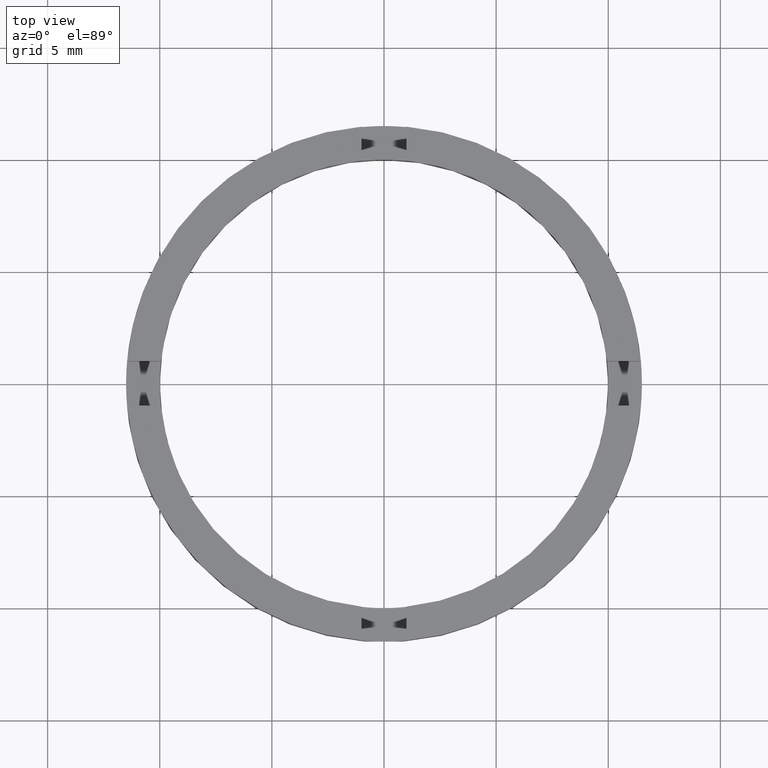
[diagram: clean part render]
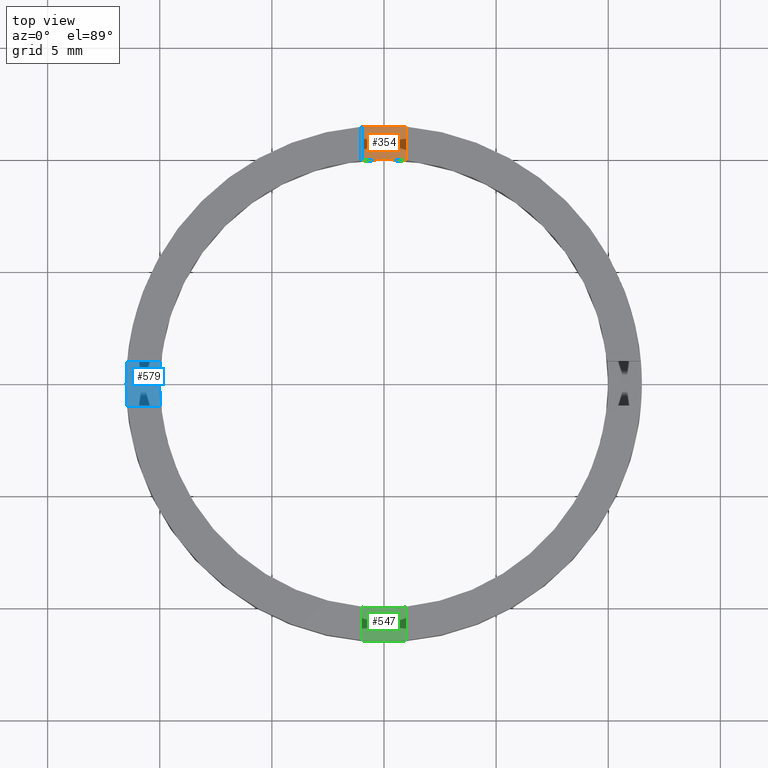
[diagram: same view with three faces highlighted in distinct colors, each labeled with its STEP entity id]
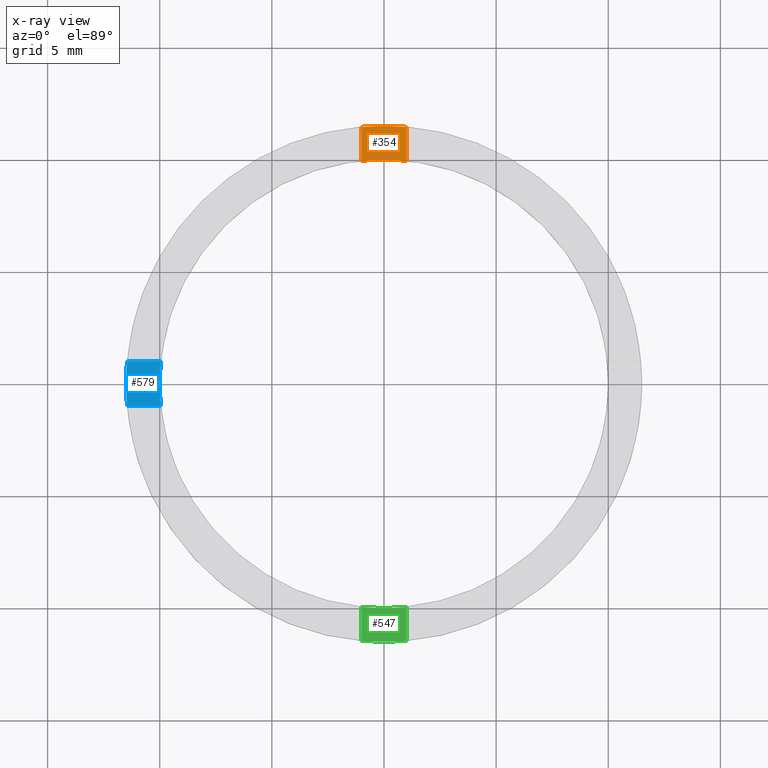
[diagram: x-ray of the same camera — body ghosted, the three highlighted faces saturated]
A machine part, top view with three faces highlighted in distinct colors.
The next image is the same camera in x-ray (body ghosted, the three faces saturated) — at least one of them is partly hidden behind the body in this view.
Their STEP definitions:

[orange] entity #354 — the highlighted planar face has unit normal (0, -0, 1).
#14 = ORIENTED_EDGE ( 'NONE', *, *, #602, .T. ) ;
#31 = DIRECTION ( 'NONE',  ( 0.000000000000000000, 1.000000000000000000, 0.000000000000000000 ) ) ;
#57 = AXIS2_PLACEMENT_3D ( 'NONE', #525, #76, #157 ) ;
#72 = CARTESIAN_POINT ( 'NONE',  ( 0.9999999999999754641, 11.45643923738960090, 1.500000000000000000 ) ) ;
#76 = DIRECTION ( 'NONE',  ( 0.000000000000000000, -0.000000000000000000, 1.000000000000000000 ) ) ;
#114 = EDGE_CURVE ( 'NONE', #749, #476, #718, .T. ) ;
#136 = ORIENTED_EDGE ( 'NONE', *, *, #467, .F. ) ;
#138 = LINE ( 'NONE', #571, #412 ) ;
#157 = DIRECTION ( 'NONE',  ( 1.000000000000000000, 0.000000000000000000, 0.000000000000000000 ) ) ;
#159 = CIRCLE ( 'NONE', #737, 11.50000000000000000 ) ;
#195 = AXIS2_PLACEMENT_3D ( 'NONE', #360, #470, #527 ) ;
#286 = CARTESIAN_POINT ( 'NONE',  ( 0.9999999999999754641, 1.500000000000001332, 1.500000000000000000 ) ) ;
#287 = CARTESIAN_POINT ( 'NONE',  ( -1.000000000000024425, 9.949874371066194101, 1.500000000000000000 ) ) ;
#290 = CARTESIAN_POINT ( 'NONE',  ( 0.000000000000000000, 0.000000000000000000, 1.500000000000000000 ) ) ;
#319 = PLANE ( 'NONE',  #195 ) ;
#354 = ADVANCED_FACE ( 'NONE', ( #479 ), #319, .T. ) ;
#360 = CARTESIAN_POINT ( 'NONE',  ( 0.000000000000000000, 0.000000000000000000, 1.500000000000000000 ) ) ;
#412 = VECTOR ( 'NONE', #452, 1000.000000000000000 ) ;
#413 = VERTEX_POINT ( 'NONE', #287 ) ;
#452 = DIRECTION ( 'NONE',  ( -0.000000000000000000, -1.000000000000000000, -0.000000000000000000 ) ) ;
#467 = EDGE_CURVE ( 'NONE', #749, #413, #727, .T. ) ;
#470 = DIRECTION ( 'NONE',  ( 0.000000000000000000, -0.000000000000000000, 1.000000000000000000 ) ) ;
#472 = EDGE_LOOP ( 'NONE', ( #14, #642, #136, #541 ) ) ;
#476 = VERTEX_POINT ( 'NONE', #72 ) ;
#479 = FACE_OUTER_BOUND ( 'NONE', #472, .T. ) ;
#525 = CARTESIAN_POINT ( 'NONE',  ( 0.000000000000000000, 0.000000000000000000, 1.500000000000000000 ) ) ;
#527 = DIRECTION ( 'NONE',  ( 1.000000000000000000, 0.000000000000000000, -0.000000000000000000 ) ) ;
#538 = CARTESIAN_POINT ( 'NONE',  ( -1.000000000000024425, 11.45643923738959735, 1.500000000000000000 ) ) ;
#541 = ORIENTED_EDGE ( 'NONE', *, *, #114, .T. ) ;
#571 = CARTESIAN_POINT ( 'NONE',  ( -1.000000000000024425, 1.500000000000001332, 1.500000000000000000 ) ) ;
#583 = EDGE_CURVE ( 'NONE', #731, #413, #138, .T. ) ;
#602 = EDGE_CURVE ( 'NONE', #476, #731, #159, .T. ) ;
#605 = DIRECTION ( 'NONE',  ( 1.000000000000000000, 0.000000000000000000, 0.000000000000000000 ) ) ;
#642 = ORIENTED_EDGE ( 'NONE', *, *, #583, .T. ) ;
#705 = VECTOR ( 'NONE', #31, 1000.000000000000000 ) ;
#718 = LINE ( 'NONE', #286, #705 ) ;
#727 = CIRCLE ( 'NONE', #57, 9.999999999999998224 ) ;
#731 = VERTEX_POINT ( 'NONE', #538 ) ;
#737 = AXIS2_PLACEMENT_3D ( 'NONE', #290, #767, #605 ) ;
#749 = VERTEX_POINT ( 'NONE', #771 ) ;
#767 = DIRECTION ( 'NONE',  ( 0.000000000000000000, -0.000000000000000000, 1.000000000000000000 ) ) ;
#771 = CARTESIAN_POINT ( 'NONE',  ( 0.9999999999999754641, 9.949874371066199430, 1.500000000000000000 ) ) ;

[blue] entity #579 — the highlighted planar face has unit normal (0, 0, 1).
#3 = VERTEX_POINT ( 'NONE', #304 ) ;
#20 = AXIS2_PLACEMENT_3D ( 'NONE', #590, #236, #60 ) ;
#40 = DIRECTION ( 'NONE',  ( 0.000000000000000000, 0.000000000000000000, 1.000000000000000000 ) ) ;
#42 = AXIS2_PLACEMENT_3D ( 'NONE', #252, #186, #297 ) ;
#54 = DIRECTION ( 'NONE',  ( 0.000000000000000000, 0.000000000000000000, 1.000000000000000000 ) ) ;
#60 = DIRECTION ( 'NONE',  ( 1.000000000000000000, 0.000000000000000000, -0.000000000000000000 ) ) ;
#67 = CARTESIAN_POINT ( 'NONE',  ( -11.45643923738960090, 0.9999999999999781286, 1.500000000000000000 ) ) ;
#74 = EDGE_CURVE ( 'NONE', #531, #537, #152, .T. ) ;
#78 = EDGE_CURVE ( 'NONE', #761, #536, #161, .T. ) ;
#90 = DIRECTION ( 'NONE',  ( 1.000000000000000000, 0.000000000000000000, 0.000000000000000000 ) ) ;
#106 = ORIENTED_EDGE ( 'NONE', *, *, #78, .T. ) ;
#110 = PLANE ( 'NONE',  #20 ) ;
#112 = VECTOR ( 'NONE', #676, 1000.000000000000000 ) ;
#133 = ORIENTED_EDGE ( 'NONE', *, *, #74, .F. ) ;
#152 = CIRCLE ( 'NONE', #280, 9.999999999999998224 ) ;
#161 = CIRCLE ( 'NONE', #303, 11.50000000000000000 ) ;
#186 = DIRECTION ( 'NONE',  ( 0.000000000000000000, 0.000000000000000000, 1.000000000000000000 ) ) ;
#200 = CIRCLE ( 'NONE', #42, 11.50000000000000000 ) ;
#204 = LINE ( 'NONE', #565, #724 ) ;
#206 = CIRCLE ( 'NONE', #609, 9.999999999999998224 ) ;
#207 = VERTEX_POINT ( 'NONE', #478 ) ;
#223 = CARTESIAN_POINT ( 'NONE',  ( -1.500000000000185185, 0.9999999999999799050, 1.500000000000000000 ) ) ;
#236 = DIRECTION ( 'NONE',  ( 0.000000000000000000, 0.000000000000000000, 1.000000000000000000 ) ) ;
#237 = ORIENTED_EDGE ( 'NONE', *, *, #416, .T. ) ;
#250 = ORIENTED_EDGE ( 'NONE', *, *, #690, .T. ) ;
#252 = CARTESIAN_POINT ( 'NONE',  ( 0.000000000000000000, 0.000000000000000000, 1.500000000000000000 ) ) ;
#256 = CARTESIAN_POINT ( 'NONE',  ( -9.949874371066199430, 0.9999999999999783507, 1.500000000000000000 ) ) ;
#280 = AXIS2_PLACEMENT_3D ( 'NONE', #310, #645, #585 ) ;
#291 = EDGE_CURVE ( 'NONE', #536, #207, #200, .T. ) ;
#297 = DIRECTION ( 'NONE',  ( 1.000000000000000000, 0.000000000000000000, 0.000000000000000000 ) ) ;
#298 = CARTESIAN_POINT ( 'NONE',  ( -9.999999999999998224, 0.000000000000000000, 1.500000000000000000 ) ) ;
#301 = CARTESIAN_POINT ( 'NONE',  ( -11.50000000000000000, 0.000000000000000000, 1.500000000000000000 ) ) ;
#303 = AXIS2_PLACEMENT_3D ( 'NONE', #345, #54, #90 ) ;
#304 = CARTESIAN_POINT ( 'NONE',  ( -9.949874371066195877, -1.000000000000021760, 1.500000000000000000 ) ) ;
#310 = CARTESIAN_POINT ( 'NONE',  ( 0.000000000000000000, 0.000000000000000000, 1.500000000000000000 ) ) ;
#345 = CARTESIAN_POINT ( 'NONE',  ( 0.000000000000000000, 0.000000000000000000, 1.500000000000000000 ) ) ;
#358 = DIRECTION ( 'NONE',  ( 1.000000000000000000, 1.734723475976807341E-16, -0.000000000000000000 ) ) ;
#394 = ORIENTED_EDGE ( 'NONE', *, *, #420, .F. ) ;
#416 = EDGE_CURVE ( 'NONE', #207, #3, #204, .T. ) ;
#420 = EDGE_CURVE ( 'NONE', #537, #3, #206, .T. ) ;
#468 = DIRECTION ( 'NONE',  ( 1.000000000000000000, 0.000000000000000000, 0.000000000000000000 ) ) ;
#478 = CARTESIAN_POINT ( 'NONE',  ( -11.45643923738959735, -1.000000000000021982, 1.500000000000000000 ) ) ;
#531 = VERTEX_POINT ( 'NONE', #256 ) ;
#536 = VERTEX_POINT ( 'NONE', #301 ) ;
#537 = VERTEX_POINT ( 'NONE', #298 ) ;
#565 = CARTESIAN_POINT ( 'NONE',  ( -1.500000000000185185, -1.000000000000020206, 1.500000000000000000 ) ) ;
#579 = ADVANCED_FACE ( 'NONE', ( #657 ), #110, .T. ) ;
#585 = DIRECTION ( 'NONE',  ( 1.000000000000000000, 0.000000000000000000, 0.000000000000000000 ) ) ;
#590 = CARTESIAN_POINT ( 'NONE',  ( 0.000000000000000000, 0.000000000000000000, 1.500000000000000000 ) ) ;
#609 = AXIS2_PLACEMENT_3D ( 'NONE', #777, #40, #468 ) ;
#635 = LINE ( 'NONE', #223, #112 ) ;
#645 = DIRECTION ( 'NONE',  ( 0.000000000000000000, 0.000000000000000000, 1.000000000000000000 ) ) ;
#657 = FACE_OUTER_BOUND ( 'NONE', #744, .T. ) ;
#676 = DIRECTION ( 'NONE',  ( -1.000000000000000000, -1.734723475976807341E-16, 0.000000000000000000 ) ) ;
#690 = EDGE_CURVE ( 'NONE', #531, #761, #635, .T. ) ;
#704 = ORIENTED_EDGE ( 'NONE', *, *, #291, .T. ) ;
#724 = VECTOR ( 'NONE', #358, 1000.000000000000000 ) ;
#744 = EDGE_LOOP ( 'NONE', ( #106, #704, #237, #394, #133, #250 ) ) ;
#761 = VERTEX_POINT ( 'NONE', #67 ) ;
#777 = CARTESIAN_POINT ( 'NONE',  ( 0.000000000000000000, 0.000000000000000000, 1.500000000000000000 ) ) ;

[green] entity #547 — the highlighted planar face has unit normal (-0, 0, 1).
#1 = ORIENTED_EDGE ( 'NONE', *, *, #699, .T. ) ;
#21 = DIRECTION ( 'NONE',  ( 1.000000000000000000, 0.000000000000000000, 0.000000000000000000 ) ) ;
#29 = CARTESIAN_POINT ( 'NONE',  ( 0.000000000000000000, 0.000000000000000000, 1.500000000000000000 ) ) ;
#52 = EDGE_CURVE ( 'NONE', #391, #633, #660, .T. ) ;
#65 = DIRECTION ( 'NONE',  ( -0.000000000000000000, 0.000000000000000000, 1.000000000000000000 ) ) ;
#77 = EDGE_CURVE ( 'NONE', #720, #633, #675, .T. ) ;
#96 = EDGE_CURVE ( 'NONE', #391, #228, #670, .T. ) ;
#121 = DIRECTION ( 'NONE',  ( 1.000000000000000000, 0.000000000000000000, 0.000000000000000000 ) ) ;
#123 = ORIENTED_EDGE ( 'NONE', *, *, #96, .T. ) ;
#141 = ORIENTED_EDGE ( 'NONE', *, *, #52, .F. ) ;
#198 = VECTOR ( 'NONE', #589, 1000.000000000000000 ) ;
#217 = FACE_OUTER_BOUND ( 'NONE', #783, .T. ) ;
#228 = VERTEX_POINT ( 'NONE', #330 ) ;
#282 = CARTESIAN_POINT ( 'NONE',  ( 0.9999999999998350209, -1.500000000000181632, 1.500000000000000000 ) ) ;
#330 = CARTESIAN_POINT ( 'NONE',  ( -1.000000000000163647, -11.45643923738958669, 1.500000000000000000 ) ) ;
#340 = AXIS2_PLACEMENT_3D ( 'NONE', #659, #743, #21 ) ;
#341 = CARTESIAN_POINT ( 'NONE',  ( -1.000000000000164979, -1.500000000000181632, 1.500000000000000000 ) ) ;
#347 = DIRECTION ( 'NONE',  ( -0.000000000000000000, 0.000000000000000000, 1.000000000000000000 ) ) ;
#356 = DIRECTION ( 'NONE',  ( -1.301042606982605567E-16, 1.000000000000000000, -0.000000000000000000 ) ) ;
#364 = PLANE ( 'NONE',  #549 ) ;
#385 = CIRCLE ( 'NONE', #596, 11.50000000000000000 ) ;
#391 = VERTEX_POINT ( 'NONE', #618 ) ;
#475 = CARTESIAN_POINT ( 'NONE',  ( 0.000000000000000000, 0.000000000000000000, 1.500000000000000000 ) ) ;
#547 = ADVANCED_FACE ( 'NONE', ( #217 ), #364, .T. ) ;
#549 = AXIS2_PLACEMENT_3D ( 'NONE', #475, #347, #774 ) ;
#589 = DIRECTION ( 'NONE',  ( 1.301042606982605567E-16, -1.000000000000000000, 0.000000000000000000 ) ) ;
#596 = AXIS2_PLACEMENT_3D ( 'NONE', #29, #65, #121 ) ;
#599 = CARTESIAN_POINT ( 'NONE',  ( 0.9999999999998361311, -9.949874371066213641, 1.500000000000000000 ) ) ;
#618 = CARTESIAN_POINT ( 'NONE',  ( -1.000000000000163869, -9.949874371066179890, 1.500000000000000000 ) ) ;
#633 = VERTEX_POINT ( 'NONE', #599 ) ;
#652 = ORIENTED_EDGE ( 'NONE', *, *, #77, .T. ) ;
#659 = CARTESIAN_POINT ( 'NONE',  ( 0.000000000000000000, 0.000000000000000000, 1.500000000000000000 ) ) ;
#660 = CIRCLE ( 'NONE', #340, 9.999999999999998224 ) ;
#670 = LINE ( 'NONE', #341, #198 ) ;
#675 = LINE ( 'NONE', #282, #680 ) ;
#680 = VECTOR ( 'NONE', #356, 1000.000000000000000 ) ;
#699 = EDGE_CURVE ( 'NONE', #228, #720, #385, .T. ) ;
#710 = CARTESIAN_POINT ( 'NONE',  ( 0.9999999999998363531, -11.45643923738961334, 1.500000000000000000 ) ) ;
#720 = VERTEX_POINT ( 'NONE', #710 ) ;
#743 = DIRECTION ( 'NONE',  ( -0.000000000000000000, 0.000000000000000000, 1.000000000000000000 ) ) ;
#774 = DIRECTION ( 'NONE',  ( 1.000000000000000000, 0.000000000000000000, 0.000000000000000000 ) ) ;
#783 = EDGE_LOOP ( 'NONE', ( #1, #652, #141, #123 ) ) ;